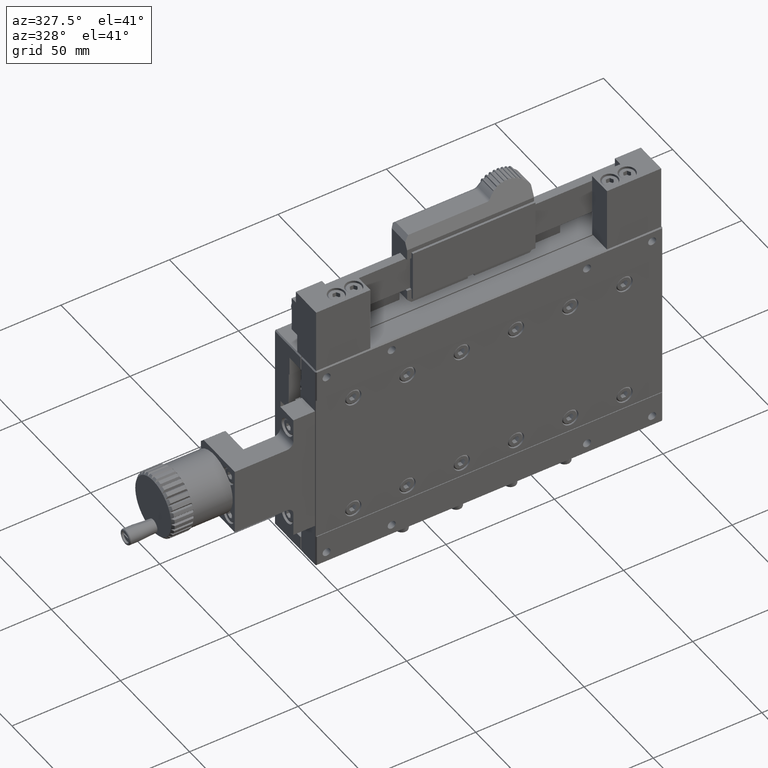
[diagram: clean part render]
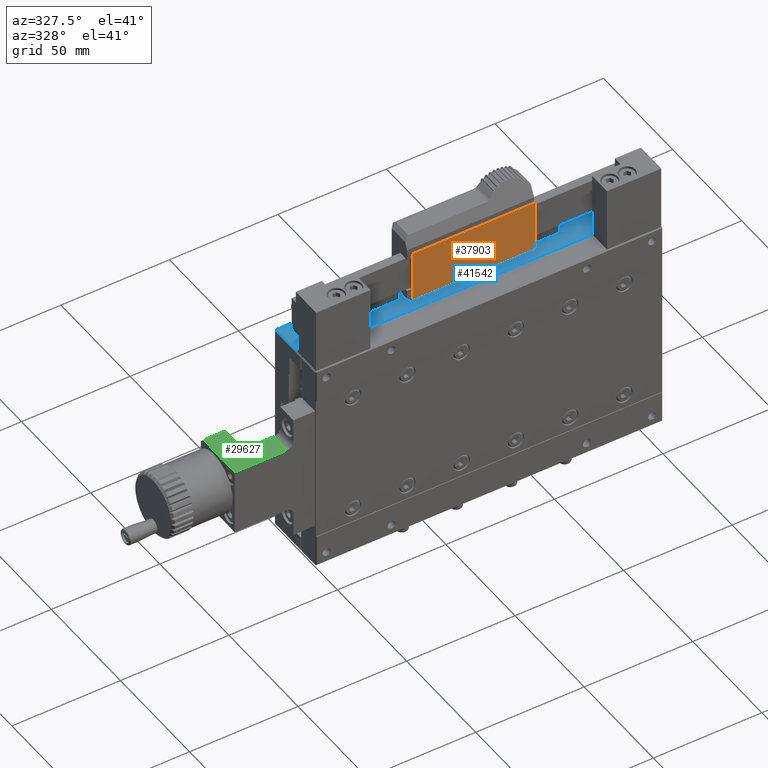
[diagram: same view with three faces highlighted in distinct colors, each labeled with its STEP entity id]
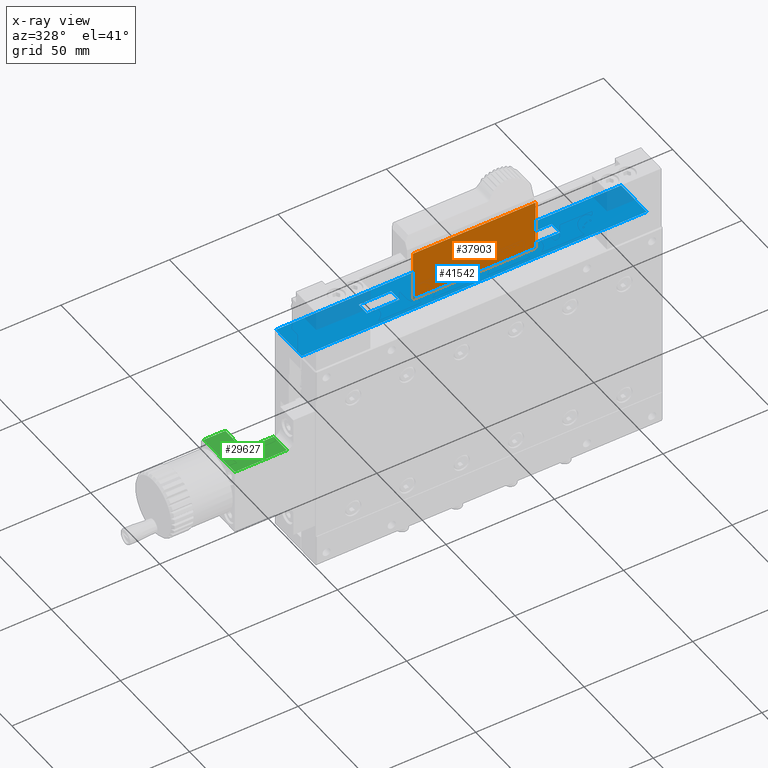
[diagram: x-ray of the same camera — body ghosted, the three highlighted faces saturated]
A machine part, auxiliary view with three faces highlighted in distinct colors.
The next image is the same camera in x-ray (body ghosted, the three faces saturated) — at least one of them is partly hidden behind the body in this view.
Their STEP definitions:

[orange] entity #37903 — the highlighted planar face has unit normal (0, 1, 0).
#1126 = LINE ( 'NONE', #6766, #35249 ) ;
#4766 = VECTOR ( 'NONE', #57076, 1000.000000000000000 ) ;
#5249 = VERTEX_POINT ( 'NONE', #27086 ) ;
#6305 = ORIENTED_EDGE ( 'NONE', *, *, #6469, .F. ) ;
#6469 = EDGE_CURVE ( 'NONE', #38582, #51824, #58709, .T. ) ;
#6766 = CARTESIAN_POINT ( 'NONE',  ( -9.499999999999989342, 12.19999999999999929, 54.00000000000000000 ) ) ;
#9508 = AXIS2_PLACEMENT_3D ( 'NONE', #15839, #41133, #41789 ) ;
#11164 = ORIENTED_EDGE ( 'NONE', *, *, #19200, .T. ) ;
#11717 = CARTESIAN_POINT ( 'NONE',  ( -51.00000000000000711, 12.19999999999999929, 84.00200000000080536 ) ) ;
#12358 = LINE ( 'NONE', #11717, #42291 ) ;
#15839 = CARTESIAN_POINT ( 'NONE',  ( -71.19303265207109632, 12.19999999999999929, 86.69909881713890343 ) ) ;
#19200 = EDGE_CURVE ( 'NONE', #38582, #49554, #21448, .T. ) ;
#21448 = LINE ( 'NONE', #57414, #4766 ) ;
#25796 = FACE_OUTER_BOUND ( 'NONE', #33512, .T. ) ;
#27086 = CARTESIAN_POINT ( 'NONE',  ( -51.00000000000001421, 12.19999999999999929, 54.00000000000000000 ) ) ;
#29204 = EDGE_CURVE ( 'NONE', #51824, #5249, #12358, .T. ) ;
#33358 = DIRECTION ( 'NONE',  ( 1.000000000000000000, 0.000000000000000000, -0.000000000000000000 ) ) ;
#33512 = EDGE_LOOP ( 'NONE', ( #55713, #6305, #11164, #47720 ) ) ;
#35249 = VECTOR ( 'NONE', #62047, 1000.000000000000000 ) ;
#35959 = CARTESIAN_POINT ( 'NONE',  ( -107.5000000000000000, 12.19999999999999929, 77.44495000000000573 ) ) ;
#37128 = VECTOR ( 'NONE', #33358, 1000.000000000000000 ) ;
#37903 = ADVANCED_FACE ( 'NONE', ( #25796 ), #46111, .F. ) ;
#38582 = VERTEX_POINT ( 'NONE', #35959 ) ;
#40074 = CARTESIAN_POINT ( 'NONE',  ( -51.00000000000000711, 12.19999999999999929, 77.44495000000000573 ) ) ;
#41133 = DIRECTION ( 'NONE',  ( 0.000000000000000000, 1.000000000000000000, 0.000000000000000000 ) ) ;
#41789 = DIRECTION ( 'NONE',  ( 0.000000000000000000, -0.000000000000000000, 1.000000000000000000 ) ) ;
#42265 = EDGE_CURVE ( 'NONE', #5249, #49554, #1126, .T. ) ;
#42291 = VECTOR ( 'NONE', #56985, 1000.000000000000000 ) ;
#43709 = CARTESIAN_POINT ( 'NONE',  ( -9.499999999999989342, 12.19999999999999929, 77.44495000000000573 ) ) ;
#46111 = PLANE ( 'NONE',  #9508 ) ;
#47720 = ORIENTED_EDGE ( 'NONE', *, *, #42265, .F. ) ;
#49554 = VERTEX_POINT ( 'NONE', #65005 ) ;
#51824 = VERTEX_POINT ( 'NONE', #40074 ) ;
#55713 = ORIENTED_EDGE ( 'NONE', *, *, #29204, .F. ) ;
#56985 = DIRECTION ( 'NONE',  ( -4.625620894545060217E-16, 0.000000000000000000, -1.000000000000000000 ) ) ;
#57076 = DIRECTION ( 'NONE',  ( 0.000000000000000000, 0.000000000000000000, -1.000000000000000000 ) ) ;
#57414 = CARTESIAN_POINT ( 'NONE',  ( -107.5000000000000000, 12.19999999999999929, 0.000000000000000000 ) ) ;
#58709 = LINE ( 'NONE', #43709, #37128 ) ;
#62047 = DIRECTION ( 'NONE',  ( -1.000000000000000000, 0.000000000000000000, -0.000000000000000000 ) ) ;
#65005 = CARTESIAN_POINT ( 'NONE',  ( -107.5000000000000000, 12.19999999999999929, 54.00000000000000000 ) ) ;

[blue] entity #41542 — the highlighted planar face has unit normal (0, 0, 1).
#377 = CARTESIAN_POINT ( 'NONE',  ( -160.0000000000000000, 18.70000000000000284, 50.00000000000000000 ) ) ;
#1303 = DIRECTION ( 'NONE',  ( -0.000000000000000000, 1.000000000000000000, 0.000000000000000000 ) ) ;
#2024 = CARTESIAN_POINT ( 'NONE',  ( -50.50000000000000000, 30.00000000000000000, 50.00000000000000000 ) ) ;
#2813 = EDGE_LOOP ( 'NONE', ( #41265, #38803, #64835, #49977 ) ) ;
#2898 = CARTESIAN_POINT ( 'NONE',  ( -160.0000000000000000, 30.00000000000000000, 50.00000000000000000 ) ) ;
#3416 = CARTESIAN_POINT ( 'NONE',  ( -160.0000000000000000, 29.50000000000000000, 50.00000000000000000 ) ) ;
#3644 = CARTESIAN_POINT ( 'NONE',  ( -124.5000000000000000, 30.00000000000000000, 50.00000000000000000 ) ) ;
#6234 = ORIENTED_EDGE ( 'NONE', *, *, #41740, .T. ) ;
#8556 = FACE_BOUND ( 'NONE', #43051, .T. ) ;
#8781 = CARTESIAN_POINT ( 'NONE',  ( -35.50000000000000711, 18.70000000000000284, 50.00000000000000000 ) ) ;
#8921 = CARTESIAN_POINT ( 'NONE',  ( -124.5000000000000000, 18.70000000000000284, 50.00000000000000000 ) ) ;
#10419 = EDGE_CURVE ( 'NONE', #17839, #31787, #53029, .T. ) ;
#10721 = LINE ( 'NONE', #377, #39943 ) ;
#11078 = CARTESIAN_POINT ( 'NONE',  ( -159.5000000000000000, 30.00000000000000000, 50.00000000000000000 ) ) ;
#11406 = CARTESIAN_POINT ( 'NONE',  ( -0.4999999999999998890, 11.00000000000000000, 50.00000000000000000 ) ) ;
#11739 = VERTEX_POINT ( 'NONE', #37213 ) ;
#12279 = CARTESIAN_POINT ( 'NONE',  ( -0.5000000000000004441, 30.00000000000000000, 50.00000000000000000 ) ) ;
#12905 = FACE_OUTER_BOUND ( 'NONE', #2813, .T. ) ;
#13321 = LINE ( 'NONE', #28933, #45451 ) ;
#13554 = DIRECTION ( 'NONE',  ( 1.000000000000000000, 0.000000000000000000, -0.000000000000000000 ) ) ;
#14671 = VERTEX_POINT ( 'NONE', #8781 ) ;
#14740 = EDGE_CURVE ( 'NONE', #25422, #42964, #20410, .T. ) ;
#16191 = CARTESIAN_POINT ( 'NONE',  ( -160.0000000000000000, 18.70000000000000284, 50.00000000000000000 ) ) ;
#16252 = VECTOR ( 'NONE', #52575, 1000.000000000000000 ) ;
#16738 = VERTEX_POINT ( 'NONE', #23078 ) ;
#17839 = VERTEX_POINT ( 'NONE', #62426 ) ;
#18054 = LINE ( 'NONE', #53650, #41188 ) ;
#18178 = EDGE_CURVE ( 'NONE', #31766, #11739, #34585, .T. ) ;
#19225 = EDGE_CURVE ( 'NONE', #56737, #25422, #64696, .T. ) ;
#20218 = LINE ( 'NONE', #51173, #55876 ) ;
#20410 = LINE ( 'NONE', #11078, #59203 ) ;
#20438 = EDGE_CURVE ( 'NONE', #31787, #31766, #10721, .T. ) ;
#20720 = ORIENTED_EDGE ( 'NONE', *, *, #10419, .T. ) ;
#22632 = LINE ( 'NONE', #2024, #39112 ) ;
#22653 = EDGE_CURVE ( 'NONE', #34828, #14671, #13321, .T. ) ;
#23078 = CARTESIAN_POINT ( 'NONE',  ( -50.50000000000000000, 18.70000000000000284, 50.00000000000000000 ) ) ;
#23203 = DIRECTION ( 'NONE',  ( 0.000000000000000000, 0.000000000000000000, 1.000000000000000000 ) ) ;
#23381 = DIRECTION ( 'NONE',  ( 0.000000000000000000, -1.000000000000000000, -0.000000000000000000 ) ) ;
#25422 = VERTEX_POINT ( 'NONE', #42248 ) ;
#26511 = EDGE_CURVE ( 'NONE', #56536, #56737, #58222, .T. ) ;
#26802 = EDGE_CURVE ( 'NONE', #42964, #56536, #20218, .T. ) ;
#27742 = ORIENTED_EDGE ( 'NONE', *, *, #56937, .T. ) ;
#28933 = CARTESIAN_POINT ( 'NONE',  ( -35.50000000000000711, 30.00000000000000000, 50.00000000000000000 ) ) ;
#30294 = CARTESIAN_POINT ( 'NONE',  ( -0.4999999999999952260, 29.50000000000000355, 50.00000000000000000 ) ) ;
#30396 = DIRECTION ( 'NONE',  ( 0.000000000000000000, -1.000000000000000000, -0.000000000000000000 ) ) ;
#31064 = VERTEX_POINT ( 'NONE', #40047 ) ;
#31476 = LINE ( 'NONE', #16191, #57575 ) ;
#31766 = VERTEX_POINT ( 'NONE', #8921 ) ;
#31787 = VERTEX_POINT ( 'NONE', #43570 ) ;
#32382 = DIRECTION ( 'NONE',  ( 0.000000000000000000, -1.000000000000000000, -0.000000000000000000 ) ) ;
#33917 = EDGE_CURVE ( 'NONE', #31064, #34828, #18054, .T. ) ;
#34410 = ORIENTED_EDGE ( 'NONE', *, *, #20438, .T. ) ;
#34585 = LINE ( 'NONE', #3644, #59050 ) ;
#34828 = VERTEX_POINT ( 'NONE', #37156 ) ;
#37156 = CARTESIAN_POINT ( 'NONE',  ( -35.50000000000000711, 24.69999999999999929, 50.00000000000000000 ) ) ;
#37213 = CARTESIAN_POINT ( 'NONE',  ( -124.5000000000000000, 24.69999999999999929, 50.00000000000000000 ) ) ;
#38803 = ORIENTED_EDGE ( 'NONE', *, *, #14740, .T. ) ;
#39112 = VECTOR ( 'NONE', #47966, 1000.000000000000000 ) ;
#39943 = VECTOR ( 'NONE', #62311, 1000.000000000000000 ) ;
#40047 = CARTESIAN_POINT ( 'NONE',  ( -50.50000000000000000, 24.69999999999999929, 50.00000000000000000 ) ) ;
#40528 = DIRECTION ( 'NONE',  ( 1.000000000000000000, 0.000000000000000000, -0.000000000000000000 ) ) ;
#41188 = VECTOR ( 'NONE', #44900, 1000.000000000000000 ) ;
#41265 = ORIENTED_EDGE ( 'NONE', *, *, #19225, .T. ) ;
#41542 = ADVANCED_FACE ( 'NONE', ( #63843, #8556, #12905 ), #53823, .T. ) ;
#41740 = EDGE_CURVE ( 'NONE', #14671, #16738, #31476, .T. ) ;
#42248 = CARTESIAN_POINT ( 'NONE',  ( -159.5000000000000000, 29.50000000000000000, 50.00000000000000000 ) ) ;
#42964 = VERTEX_POINT ( 'NONE', #62846 ) ;
#43051 = EDGE_LOOP ( 'NONE', ( #60549, #6234, #58399, #57598 ) ) ;
#43570 = CARTESIAN_POINT ( 'NONE',  ( -109.5000000000000000, 18.70000000000000284, 50.00000000000000000 ) ) ;
#44900 = DIRECTION ( 'NONE',  ( 1.000000000000000000, 0.000000000000000000, -0.000000000000000000 ) ) ;
#45182 = VECTOR ( 'NONE', #23381, 1000.000000000000000 ) ;
#45451 = VECTOR ( 'NONE', #32382, 1000.000000000000000 ) ;
#46929 = AXIS2_PLACEMENT_3D ( 'NONE', #2898, #23203, #13554 ) ;
#47966 = DIRECTION ( 'NONE',  ( -0.000000000000000000, 1.000000000000000000, 0.000000000000000000 ) ) ;
#49394 = VECTOR ( 'NONE', #59369, 1000.000000000000000 ) ;
#49805 = EDGE_CURVE ( 'NONE', #16738, #31064, #22632, .T. ) ;
#49977 = ORIENTED_EDGE ( 'NONE', *, *, #26511, .T. ) ;
#51173 = CARTESIAN_POINT ( 'NONE',  ( -160.0000000000000000, 11.00000000000000000, 50.00000000000000000 ) ) ;
#52575 = DIRECTION ( 'NONE',  ( 1.000000000000000000, 0.000000000000000000, -0.000000000000000000 ) ) ;
#53029 = LINE ( 'NONE', #54330, #45182 ) ;
#53650 = CARTESIAN_POINT ( 'NONE',  ( -160.0000000000000000, 24.69999999999999929, 50.00000000000000000 ) ) ;
#53823 = PLANE ( 'NONE',  #46929 ) ;
#54330 = CARTESIAN_POINT ( 'NONE',  ( -109.5000000000000000, 30.00000000000000000, 50.00000000000000000 ) ) ;
#55876 = VECTOR ( 'NONE', #40528, 1000.000000000000000 ) ;
#56536 = VERTEX_POINT ( 'NONE', #11406 ) ;
#56728 = EDGE_LOOP ( 'NONE', ( #20720, #34410, #57031, #27742 ) ) ;
#56737 = VERTEX_POINT ( 'NONE', #30294 ) ;
#56919 = VECTOR ( 'NONE', #1303, 1000.000000000000000 ) ;
#56937 = EDGE_CURVE ( 'NONE', #11739, #17839, #61929, .T. ) ;
#57031 = ORIENTED_EDGE ( 'NONE', *, *, #18178, .T. ) ;
#57575 = VECTOR ( 'NONE', #62465, 1000.000000000000000 ) ;
#57598 = ORIENTED_EDGE ( 'NONE', *, *, #33917, .T. ) ;
#58222 = LINE ( 'NONE', #12279, #56919 ) ;
#58399 = ORIENTED_EDGE ( 'NONE', *, *, #49805, .T. ) ;
#59050 = VECTOR ( 'NONE', #59273, 1000.000000000000000 ) ;
#59203 = VECTOR ( 'NONE', #30396, 1000.000000000000000 ) ;
#59273 = DIRECTION ( 'NONE',  ( -0.000000000000000000, 1.000000000000000000, 0.000000000000000000 ) ) ;
#59369 = DIRECTION ( 'NONE',  ( -1.000000000000000000, -0.000000000000000000, -0.000000000000000000 ) ) ;
#60549 = ORIENTED_EDGE ( 'NONE', *, *, #22653, .T. ) ;
#61929 = LINE ( 'NONE', #62602, #16252 ) ;
#62311 = DIRECTION ( 'NONE',  ( -1.000000000000000000, -0.000000000000000000, 0.000000000000000000 ) ) ;
#62426 = CARTESIAN_POINT ( 'NONE',  ( -109.5000000000000000, 24.69999999999999929, 50.00000000000000000 ) ) ;
#62465 = DIRECTION ( 'NONE',  ( -1.000000000000000000, -0.000000000000000000, 0.000000000000000000 ) ) ;
#62602 = CARTESIAN_POINT ( 'NONE',  ( -160.0000000000000000, 24.69999999999999929, 50.00000000000000000 ) ) ;
#62846 = CARTESIAN_POINT ( 'NONE',  ( -159.5000000000000000, 10.99999999999999645, 50.00000000000000000 ) ) ;
#63843 = FACE_BOUND ( 'NONE', #56728, .T. ) ;
#64696 = LINE ( 'NONE', #3416, #49394 ) ;
#64835 = ORIENTED_EDGE ( 'NONE', *, *, #26802, .T. ) ;

[green] entity #29627 — the highlighted planar face has unit normal (0, 0, -1).
#2140 = ORIENTED_EDGE ( 'NONE', *, *, #35750, .T. ) ;
#2811 = CARTESIAN_POINT ( 'NONE',  ( -197.0000000000000000, 23.00000000000000000, 15.50000000000000000 ) ) ;
#2863 = EDGE_CURVE ( 'NONE', #44674, #62055, #40279, .T. ) ;
#3148 = LINE ( 'NONE', #2811, #29528 ) ;
#4352 = CARTESIAN_POINT ( 'NONE',  ( -173.0000000000000284, 10.00000000000000000, 15.49999999999998579 ) ) ;
#6200 = VECTOR ( 'NONE', #35615, 1000.000000000000000 ) ;
#7311 = CARTESIAN_POINT ( 'NONE',  ( -197.0000000000000000, 25.00000000000000000, 15.50000000000000000 ) ) ;
#7621 = DIRECTION ( 'NONE',  ( -1.000000000000000000, 0.000000000000000000, -0.000000000000000000 ) ) ;
#10133 = CARTESIAN_POINT ( 'NONE',  ( -186.9999999999999716, 23.00000000000000355, 15.50000000000000000 ) ) ;
#12953 = LINE ( 'NONE', #48906, #25616 ) ;
#14638 = DIRECTION ( 'NONE',  ( 1.000000000000000000, 0.000000000000000000, -0.000000000000000000 ) ) ;
#14649 = VECTOR ( 'NONE', #14638, 1000.000000000000000 ) ;
#15652 = EDGE_CURVE ( 'NONE', #19710, #42003, #3148, .T. ) ;
#16963 = ORIENTED_EDGE ( 'NONE', *, *, #64307, .F. ) ;
#17473 = DIRECTION ( 'NONE',  ( 1.000000000000000000, -0.000000000000000000, 0.000000000000000000 ) ) ;
#17787 = CARTESIAN_POINT ( 'NONE',  ( -187.0000000000000000, 25.00000000000000000, 15.50000000000000000 ) ) ;
#18116 = DIRECTION ( 'NONE',  ( -0.000000000000000000, -1.000000000000000000, -0.000000000000000000 ) ) ;
#19710 = VERTEX_POINT ( 'NONE', #38880 ) ;
#21383 = VECTOR ( 'NONE', #18116, 1000.000000000000000 ) ;
#23647 = CARTESIAN_POINT ( 'NONE',  ( -173.0000000000000284, 0.5000000000000004441, 15.49999999999998401 ) ) ;
#24535 = VERTEX_POINT ( 'NONE', #47167 ) ;
#25616 = VECTOR ( 'NONE', #34207, 1000.000000000000000 ) ;
#25957 = CARTESIAN_POINT ( 'NONE',  ( -173.0000000000000284, 25.00000000000000000, 15.49999999999996803 ) ) ;
#26230 = ORIENTED_EDGE ( 'NONE', *, *, #2863, .F. ) ;
#27460 = LINE ( 'NONE', #37442, #49714 ) ;
#27595 = FACE_OUTER_BOUND ( 'NONE', #44316, .T. ) ;
#29528 = VECTOR ( 'NONE', #17473, 1000.000000000000000 ) ;
#29627 = ADVANCED_FACE ( 'NONE', ( #27595 ), #52896, .F. ) ;
#30268 = CARTESIAN_POINT ( 'NONE',  ( -160.0000000000000000, 10.00000000000000000, 15.50000000000000178 ) ) ;
#30305 = LINE ( 'NONE', #25957, #6200 ) ;
#33735 = CARTESIAN_POINT ( 'NONE',  ( -186.9999999999999716, 10.00000000000000000, 15.50000000000000000 ) ) ;
#34207 = DIRECTION ( 'NONE',  ( 1.000000000000000000, 0.000000000000000000, -0.000000000000000000 ) ) ;
#35615 = DIRECTION ( 'NONE',  ( -0.000000000000000000, 1.000000000000000000, -0.000000000000000000 ) ) ;
#35750 = EDGE_CURVE ( 'NONE', #19710, #24535, #27460, .T. ) ;
#36355 = EDGE_CURVE ( 'NONE', #43353, #62055, #30305, .T. ) ;
#37442 = CARTESIAN_POINT ( 'NONE',  ( -197.0000000000000000, 25.00000000000000000, 15.50000000000000000 ) ) ;
#38550 = ORIENTED_EDGE ( 'NONE', *, *, #36355, .T. ) ;
#38880 = CARTESIAN_POINT ( 'NONE',  ( -196.9999999999999716, 23.00000000000000355, 15.50000000000000000 ) ) ;
#40279 = LINE ( 'NONE', #30268, #14649 ) ;
#41027 = EDGE_CURVE ( 'NONE', #24535, #43353, #12953, .T. ) ;
#42003 = VERTEX_POINT ( 'NONE', #10133 ) ;
#42754 = DIRECTION ( 'NONE',  ( 0.000000000000000000, -1.000000000000000000, -0.000000000000000000 ) ) ;
#43353 = VERTEX_POINT ( 'NONE', #23647 ) ;
#43381 = AXIS2_PLACEMENT_3D ( 'NONE', #7311, #48230, #7621 ) ;
#44316 = EDGE_LOOP ( 'NONE', ( #51062, #2140, #51995, #38550, #26230, #16963 ) ) ;
#44674 = VERTEX_POINT ( 'NONE', #33735 ) ;
#47167 = CARTESIAN_POINT ( 'NONE',  ( -196.9999999999999716, 0.5000000000000001110, 15.50000000000000000 ) ) ;
#48230 = DIRECTION ( 'NONE',  ( 0.000000000000000000, 0.000000000000000000, -1.000000000000000000 ) ) ;
#48906 = CARTESIAN_POINT ( 'NONE',  ( -173.0000000000000284, 0.5000000000000000000, 15.50000000000000000 ) ) ;
#49714 = VECTOR ( 'NONE', #42754, 1000.000000000000000 ) ;
#51062 = ORIENTED_EDGE ( 'NONE', *, *, #15652, .F. ) ;
#51995 = ORIENTED_EDGE ( 'NONE', *, *, #41027, .T. ) ;
#52896 = PLANE ( 'NONE',  #43381 ) ;
#62055 = VERTEX_POINT ( 'NONE', #4352 ) ;
#63400 = LINE ( 'NONE', #17787, #21383 ) ;
#64307 = EDGE_CURVE ( 'NONE', #42003, #44674, #63400, .T. ) ;